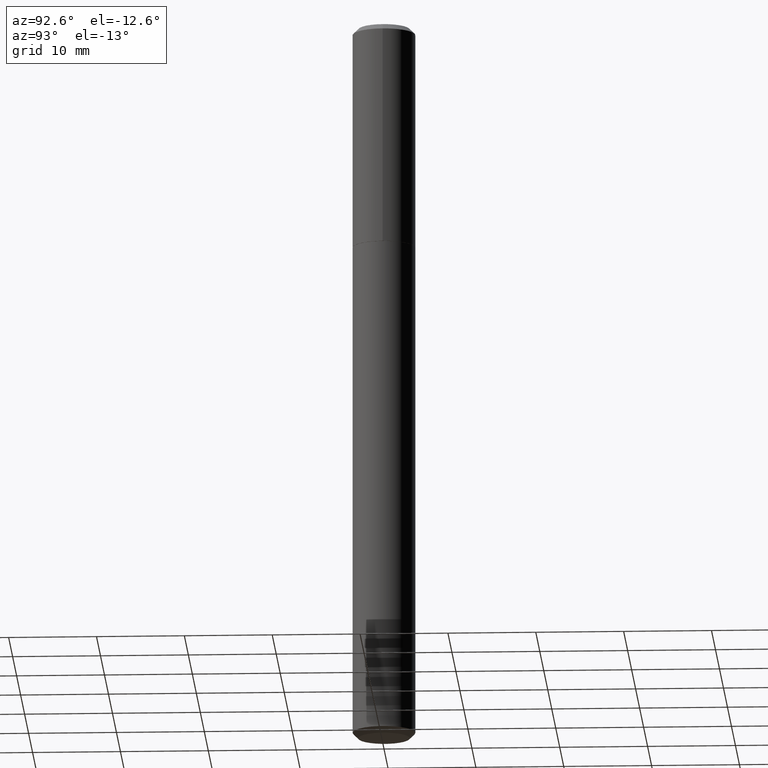
[diagram: clean part render]
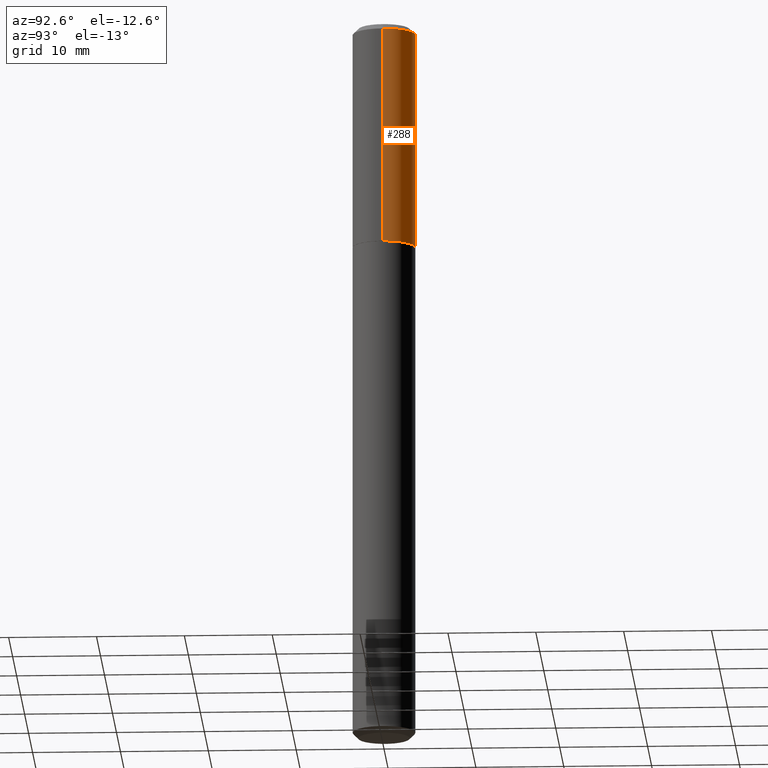
[diagram: same view with one face highlighted and labeled with its STEP entity id]
A machine part, auxiliary view. The second image highlights one B-rep face of the part: STEP entity #288.
In plain terms, the highlighted cylindrical surface (edge-blend (fillet) strip) has radius 3.5712 mm, axis along (-0, 0, 1).
Its self-contained STEP definition (entity closure, byte-faithful):
#10 = VECTOR ( 'NONE', #325, 39.37007874015748143 ) ;
#24 = VERTEX_POINT ( 'NONE', #291 ) ;
#37 = CARTESIAN_POINT ( 'NONE',  ( 0.1406000000000000583, -9.818045524826896975E-16, 6.855904546769089077E-30 ) ) ;
#46 = EDGE_CURVE ( 'NONE', #209, #321, #107, .T. ) ;
#59 = EDGE_CURVE ( 'NONE', #139, #24, #73, .T. ) ;
#73 = LINE ( 'NONE', #37, #277 ) ;
#86 = CARTESIAN_POINT ( 'NONE',  ( -0.1406000000000001138, -2.490712511695022015E-15, -0.9994999999999999440 ) ) ;
#90 = CARTESIAN_POINT ( 'NONE',  ( -0.1406000000000000028, -7.894882293437000297E-16, -0.02500000000000016792 ) ) ;
#104 = EDGE_LOOP ( 'NONE', ( #201, #166, #350, #385 ) ) ;
#107 = LINE ( 'NONE', #202, #10 ) ;
#109 = DIRECTION ( 'NONE',  ( -2.445468806185136597E-29, 3.491481338843145583E-15, 1.000000000000000000 ) ) ;
#116 = CARTESIAN_POINT ( 'NONE',  ( 6.113672015462882830E-31, -8.728703347107923368E-17, -0.02500000000000016792 ) ) ;
#123 = EDGE_CURVE ( 'NONE', #139, #209, #317, .T. ) ;
#139 = VERTEX_POINT ( 'NONE', #173 ) ;
#166 = ORIENTED_EDGE ( 'NONE', *, *, #46, .T. ) ;
#169 = AXIS2_PLACEMENT_3D ( 'NONE', #243, #304, #279 ) ;
#173 = CARTESIAN_POINT ( 'NONE',  ( 0.1406000000000001138, -4.471540150656413579E-15, -0.9994999999999999440 ) ) ;
#184 = AXIS2_PLACEMENT_3D ( 'NONE', #116, #302, #307 ) ;
#201 = ORIENTED_EDGE ( 'NONE', *, *, #123, .T. ) ;
#202 = CARTESIAN_POINT ( 'NONE',  ( -0.1406000000000000583, 9.990230864787012753E-16, -6.916022736898400541E-30 ) ) ;
#209 = VERTEX_POINT ( 'NONE', #86 ) ;
#225 = EDGE_CURVE ( 'NONE', #24, #321, #313, .T. ) ;
#233 = DIRECTION ( 'NONE',  ( -2.445468806185136877E-29, 3.491481338843145188E-15, 1.000000000000000000 ) ) ;
#235 = DIRECTION ( 'NONE',  ( 1.000000000000000000, -6.982962677686266711E-15, 0.000000000000000000 ) ) ;
#243 = CARTESIAN_POINT ( 'NONE',  ( 0.000000000000000000, 0.000000000000000000, 0.000000000000000000 ) ) ;
#277 = VECTOR ( 'NONE', #233, 39.37007874015748143 ) ;
#279 = DIRECTION ( 'NONE',  ( 1.000000000000000000, -6.982962677686268288E-15, 4.876176775795936353E-29 ) ) ;
#288 = ADVANCED_FACE ( 'NONE', ( #300 ), #333, .T. ) ;
#291 = CARTESIAN_POINT ( 'NONE',  ( 0.1406000000000000028, -1.069091585953768426E-15, -0.02500000000000016792 ) ) ;
#300 = FACE_OUTER_BOUND ( 'NONE', #104, .T. ) ;
#302 = DIRECTION ( 'NONE',  ( -2.445468806185136597E-29, 3.491481338843145583E-15, 1.000000000000000000 ) ) ;
#304 = DIRECTION ( 'NONE',  ( -2.445468806185136597E-29, 3.491481338843145583E-15, 1.000000000000000000 ) ) ;
#307 = DIRECTION ( 'NONE',  ( 1.000000000000000000, -6.982962677686266711E-15, 0.000000000000000000 ) ) ;
#313 = CIRCLE ( 'NONE', #184, 0.1406000000000000028 ) ;
#317 = CIRCLE ( 'NONE', #373, 0.1406000000000001138 ) ;
#321 = VERTEX_POINT ( 'NONE', #90 ) ;
#325 = DIRECTION ( 'NONE',  ( -2.445468806185136877E-29, 3.491481338843145188E-15, 1.000000000000000000 ) ) ;
#333 = CYLINDRICAL_SURFACE ( 'NONE', #169, 0.1406000000000000583 ) ;
#350 = ORIENTED_EDGE ( 'NONE', *, *, #225, .F. ) ;
#373 = AXIS2_PLACEMENT_3D ( 'NONE', #387, #109, #235 ) ;
#385 = ORIENTED_EDGE ( 'NONE', *, *, #59, .F. ) ;
#387 = CARTESIAN_POINT ( 'NONE',  ( 2.444246071782043795E-29, -3.489735598173723685E-15, -0.9994999999999999440 ) ) ;